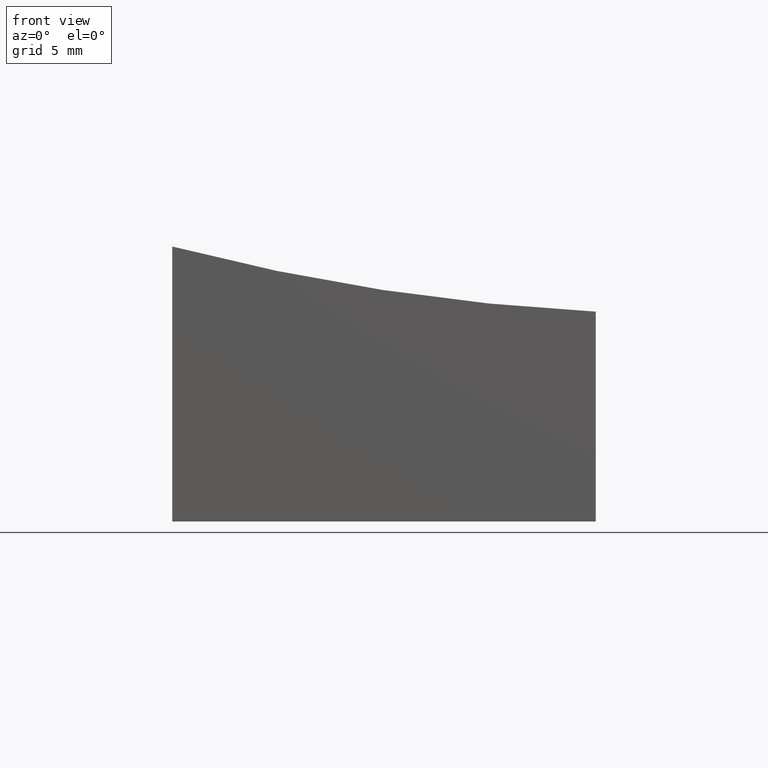
[diagram: clean part render]
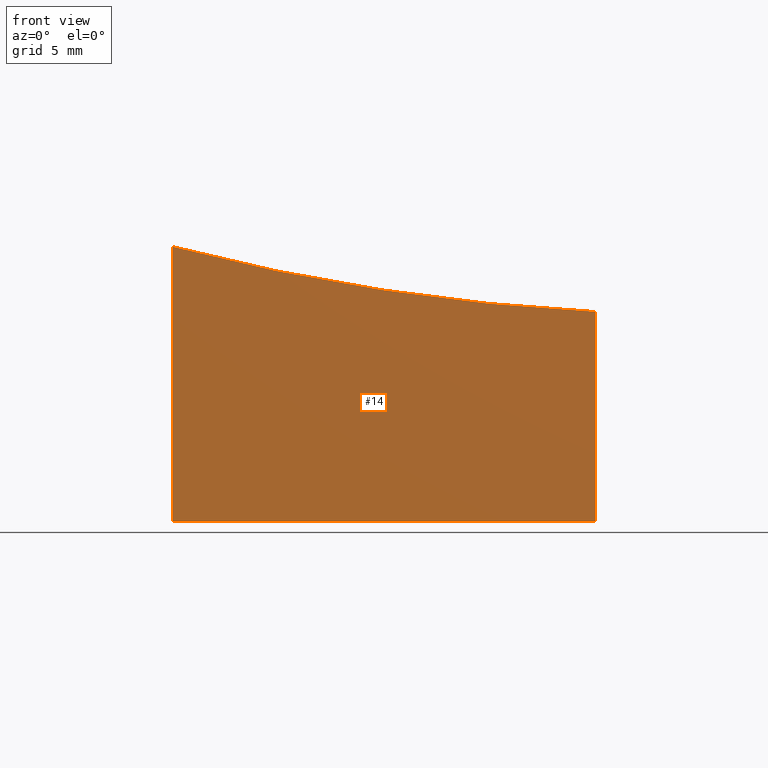
[diagram: same view with one face highlighted and labeled with its STEP entity id]
A machine part, front view. The second image highlights one B-rep face of the part: STEP entity #14.
In plain terms, the highlighted planar face has unit normal (-0, 1, 0).
Its self-contained STEP definition (entity closure, byte-faithful):
#7 = VERTEX_POINT ( 'NONE', #80 ) ;
#8 = CARTESIAN_POINT ( 'NONE',  ( 10.00000000000000178, -12.50000000000000000, 10.00000000000000000 ) ) ;
#13 = DIRECTION ( 'NONE',  ( -0.000000000000000000, -0.000000000000000000, -1.000000000000000000 ) ) ;
#14 = ADVANCED_FACE ( 'NONE', ( #162 ), #53, .F. ) ;
#16 = DIRECTION ( 'NONE',  ( -0.000000000000000000, -0.000000000000000000, -1.000000000000000000 ) ) ;
#22 = ORIENTED_EDGE ( 'NONE', *, *, #68, .T. ) ;
#30 = DIRECTION ( 'NONE',  ( -1.000000000000000000, -1.748436918438156363E-16, 0.000000000000000000 ) ) ;
#39 = CARTESIAN_POINT ( 'NONE',  ( 10.00000000000000178, -12.50000000000000000, -10.00000000000000000 ) ) ;
#44 = EDGE_CURVE ( 'NONE', #259, #160, #268, .T. ) ;
#53 = PLANE ( 'NONE',  #111 ) ;
#54 = DIRECTION ( 'NONE',  ( 1.000000000000000000, 1.734723475976807094E-16, -0.000000000000000000 ) ) ;
#68 = EDGE_CURVE ( 'NONE', #7, #119, #172, .T. ) ;
#80 = CARTESIAN_POINT ( 'NONE',  ( -9.999999999999998224, -12.50000000000000355, -10.00000000000000000 ) ) ;
#92 = DIRECTION ( 'NONE',  ( -1.734723475976807094E-16, 1.000000000000000000, 0.000000000000000000 ) ) ;
#97 = CARTESIAN_POINT ( 'NONE',  ( 10.00000000000000178, -12.50000000000000000, 10.00000000000000000 ) ) ;
#111 = AXIS2_PLACEMENT_3D ( 'NONE', #8, #92, #175 ) ;
#113 = VECTOR ( 'NONE', #54, 1000.000000000000000 ) ;
#119 = VERTEX_POINT ( 'NONE', #39 ) ;
#144 = VECTOR ( 'NONE', #16, 1000.000000000000000 ) ;
#145 = AXIS2_PLACEMENT_3D ( 'NONE', #152, #233, #30 ) ;
#149 = CARTESIAN_POINT ( 'NONE',  ( 10.00000000000000178, -12.50000000000000000, -10.00000000000000000 ) ) ;
#152 = CARTESIAN_POINT ( 'NONE',  ( 15.00000000000001599, -12.49999999999999822, 99.00000000000000000 ) ) ;
#156 = EDGE_LOOP ( 'NONE', ( #238, #193, #262, #22 ) ) ;
#158 = CARTESIAN_POINT ( 'NONE',  ( -9.999999999999998224, -12.50000000000000355, 10.00000000000000000 ) ) ;
#159 = LINE ( 'NONE', #158, #275 ) ;
#160 = VERTEX_POINT ( 'NONE', #201 ) ;
#162 = FACE_OUTER_BOUND ( 'NONE', #156, .T. ) ;
#166 = EDGE_CURVE ( 'NONE', #160, #7, #159, .T. ) ;
#172 = LINE ( 'NONE', #149, #113 ) ;
#175 = DIRECTION ( 'NONE',  ( -1.000000000000000000, -1.734723475976807094E-16, 0.000000000000000000 ) ) ;
#188 = EDGE_CURVE ( 'NONE', #259, #119, #240, .T. ) ;
#193 = ORIENTED_EDGE ( 'NONE', *, *, #44, .T. ) ;
#201 = CARTESIAN_POINT ( 'NONE',  ( -9.999999999999998224, -12.50000000000000355, 2.985678151642384925 ) ) ;
#233 = DIRECTION ( 'NONE',  ( -1.734723475976807094E-16, 1.000000000000000000, 0.000000000000000000 ) ) ;
#238 = ORIENTED_EDGE ( 'NONE', *, *, #188, .F. ) ;
#240 = LINE ( 'NONE', #97, #144 ) ;
#246 = CARTESIAN_POINT ( 'NONE',  ( 10.00000000000000178, -12.50000000000000000, -0.08960591303207310343 ) ) ;
#259 = VERTEX_POINT ( 'NONE', #246 ) ;
#262 = ORIENTED_EDGE ( 'NONE', *, *, #166, .T. ) ;
#268 = CIRCLE ( 'NONE', #145, 99.21567416492216296 ) ;
#275 = VECTOR ( 'NONE', #13, 1000.000000000000000 ) ;